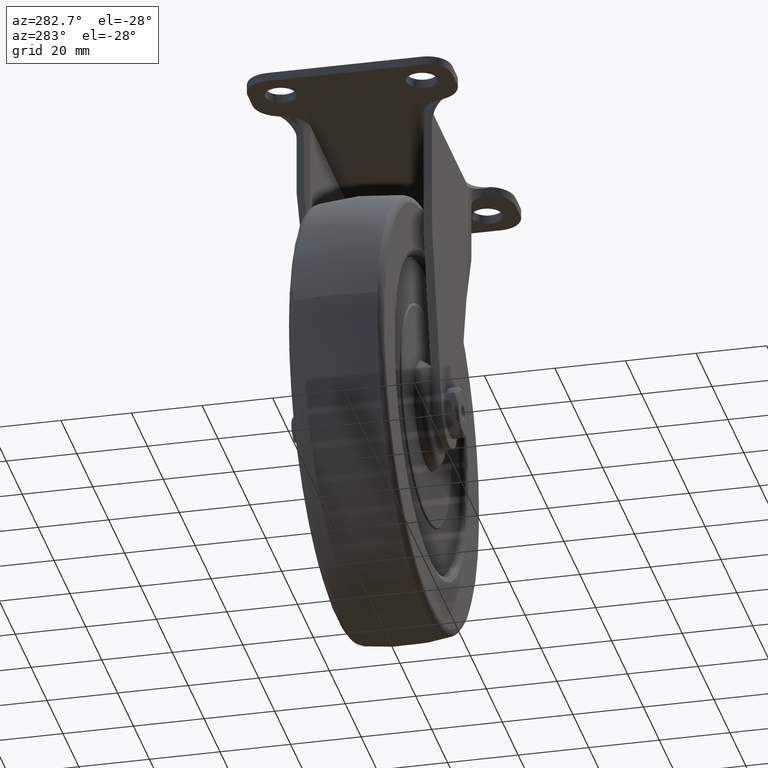
[diagram: clean part render]
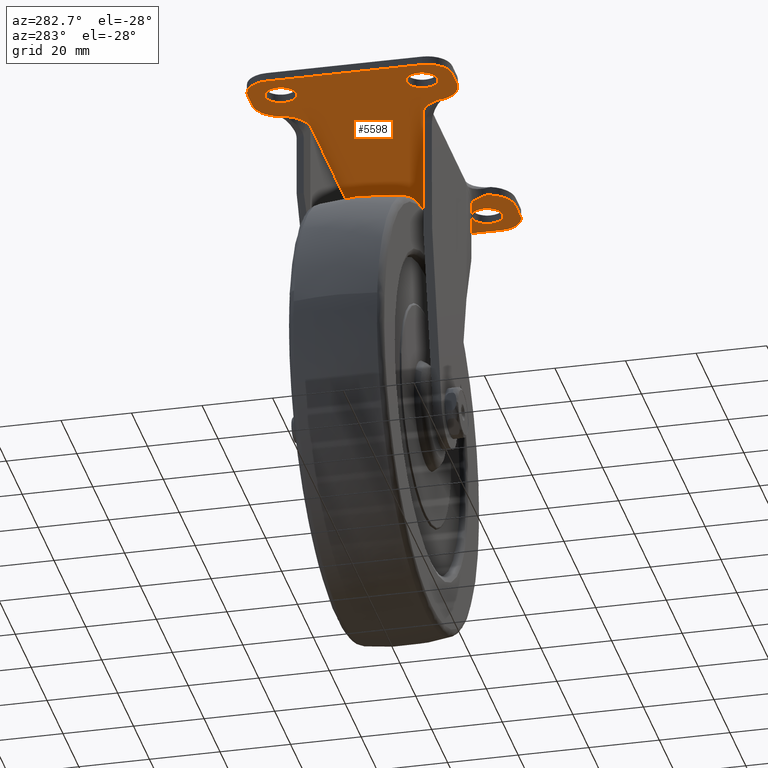
[diagram: same view with one face highlighted and labeled with its STEP entity id]
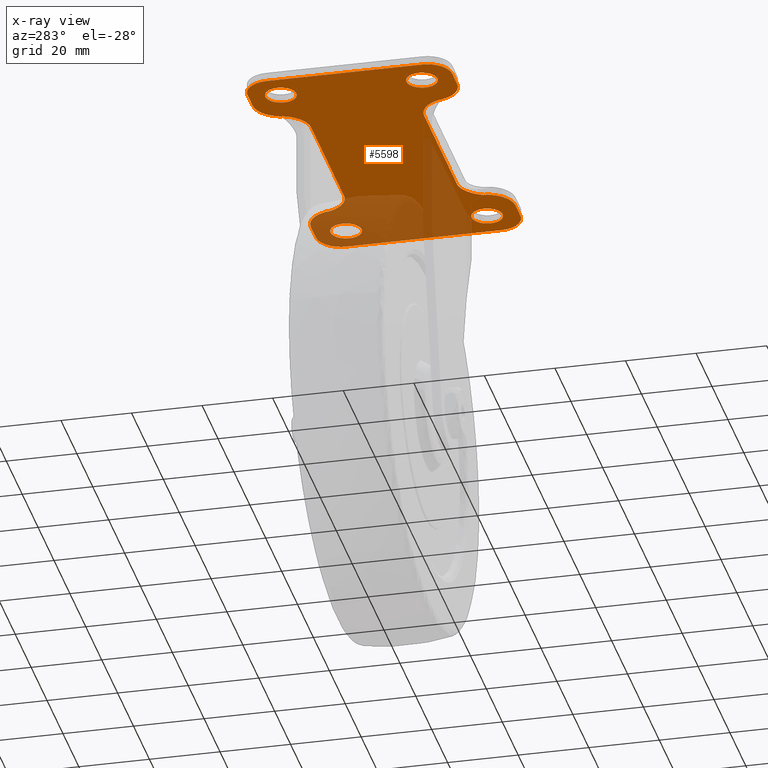
[diagram: x-ray of the same camera — body ghosted, the highlighted face saturated]
A machine part, auxiliary view. The second image highlights one B-rep face of the part: STEP entity #5598.
The next image is the same camera in x-ray: the body ghosted, the highlighted face saturated — about 29% of this face is hidden behind the body in this view.
In plain terms, the highlighted face is a freeform B-spline surface patch.
Its self-contained STEP definition (entity closure, byte-faithful):
#2997=CARTESIAN_POINT('',(45.400000100000007,-20.0,83.0));
#2998=VERTEX_POINT('',#2997);
#2999=CARTESIAN_POINT('',(41.345220029426791,-24.386436368087718,83.0));
#3000=VERTEX_POINT('',#2999);
#3001=CARTESIAN_POINT('',(45.400000100000007,-20.0,83.0));
#3002=CARTESIAN_POINT('',(45.400000100000007,-24.067318255031321,83.000000000000014));
#3003=CARTESIAN_POINT('',(41.345220029426784,-24.386436368087711,83.0));
#3011=(BOUNDED_CURVE()B_SPLINE_CURVE(2,(#3001,#3002,#3003),.UNSPECIFIED.,.F.,.U.)B_SPLINE_CURVE_WITH_KNOTS((3,3),(0.0,0.236331300603194),.UNSPECIFIED.)CURVE()GEOMETRIC_REPRESENTATION_ITEM()RATIONAL_B_SPLINE_CURVE((1.0,0.723120658639844,0.969723356110098))REPRESENTATION_ITEM(''));
#3012=EDGE_CURVE('',#2998,#3000,#3011,.T.);
#3053=CARTESIAN_POINT('',(40.654779970573209,-15.613563631912291,83.0));
#3054=VERTEX_POINT('',#3053);
#3060=CARTESIAN_POINT('',(40.654779970573202,-15.613563631912287,83.0));
#3061=CARTESIAN_POINT('',(40.827123524857122,-15.599999900000002,82.999999999999986));
#3062=CARTESIAN_POINT('',(41.0,-15.599999900000000,83.0));
#3063=CARTESIAN_POINT('',(45.400000100000014,-15.599999900000011,83.0));
#3064=CARTESIAN_POINT('',(45.400000100000007,-20.0,83.0));
#3072=(BOUNDED_CURVE()B_SPLINE_CURVE(2,(#3060,#3061,#3062,#3063,#3064),.UNSPECIFIED.,.F.,.U.)B_SPLINE_CURVE_WITH_KNOTS((3,2,3),(0.736331300603193,0.750000000000000,1.0),.UNSPECIFIED.)CURVE()GEOMETRIC_REPRESENTATION_ITEM()RATIONAL_B_SPLINE_CURVE((0.969723356110098,0.983986122546703,1.0,0.707106781186547,1.0))REPRESENTATION_ITEM(''));
#3073=EDGE_CURVE('',#3054,#2998,#3072,.T.);
#3096=CARTESIAN_POINT('',(36.599999900000000,-20.0,83.0));
#3097=VERTEX_POINT('',#3096);
#3098=CARTESIAN_POINT('',(41.345220029426791,-24.386436368087715,83.0));
#3099=CARTESIAN_POINT('',(41.172876475142871,-24.400000100000003,83.000000000000014));
#3100=CARTESIAN_POINT('',(41.0,-24.400000100000000,83.0));
#3101=CARTESIAN_POINT('',(36.599999900000000,-24.400000100000007,83.0));
#3102=CARTESIAN_POINT('',(36.599999900000000,-20.0,83.0));
#3110=(BOUNDED_CURVE()B_SPLINE_CURVE(2,(#3098,#3099,#3100,#3101,#3102),.UNSPECIFIED.,.F.,.U.)B_SPLINE_CURVE_WITH_KNOTS((3,2,3),(0.236331300603193,0.250000000000000,0.500000000000000),.UNSPECIFIED.)CURVE()GEOMETRIC_REPRESENTATION_ITEM()RATIONAL_B_SPLINE_CURVE((0.969723356110098,0.983986122546703,1.0,0.707106781186547,1.0))REPRESENTATION_ITEM(''));
#3111=EDGE_CURVE('',#3000,#3097,#3110,.T.);
#3113=CARTESIAN_POINT('',(36.599999900000000,-20.0,83.0));
#3114=CARTESIAN_POINT('',(36.599999900000000,-15.932681744968667,82.999999999999986));
#3115=CARTESIAN_POINT('',(40.654779970573209,-15.613563631912292,83.0));
#3123=(BOUNDED_CURVE()B_SPLINE_CURVE(2,(#3113,#3114,#3115),.UNSPECIFIED.,.F.,.U.)B_SPLINE_CURVE_WITH_KNOTS((3,3),(0.500000000000000,0.736331300603194),.UNSPECIFIED.)CURVE()GEOMETRIC_REPRESENTATION_ITEM()RATIONAL_B_SPLINE_CURVE((1.0,0.723120658639843,0.969723356110099))REPRESENTATION_ITEM(''));
#3124=EDGE_CURVE('',#3097,#3054,#3123,.T.);
#3179=CARTESIAN_POINT('',(-36.599999900000000,-20.0,83.0));
#3180=VERTEX_POINT('',#3179);
#3181=CARTESIAN_POINT('',(-40.654779970573202,-24.386436368087718,83.0));
#3182=VERTEX_POINT('',#3181);
#3183=CARTESIAN_POINT('',(-36.599999900000000,-20.0,83.0));
#3184=CARTESIAN_POINT('',(-36.599999900000007,-24.067318255031303,83.0));
#3185=CARTESIAN_POINT('',(-40.654779970573202,-24.386436368087711,83.0));
#3193=(BOUNDED_CURVE()B_SPLINE_CURVE(2,(#3183,#3184,#3185),.UNSPECIFIED.,.F.,.U.)B_SPLINE_CURVE_WITH_KNOTS((3,3),(0.0,0.236331300603193),.UNSPECIFIED.)CURVE()GEOMETRIC_REPRESENTATION_ITEM()RATIONAL_B_SPLINE_CURVE((1.0,0.723120658639845,0.969723356110097))REPRESENTATION_ITEM(''));
#3194=EDGE_CURVE('',#3180,#3182,#3193,.T.);
#3235=CARTESIAN_POINT('',(-41.345220029426798,-15.613563631912291,83.0));
#3236=VERTEX_POINT('',#3235);
#3242=CARTESIAN_POINT('',(-41.345220029426805,-15.613563631912282,83.000000000000014));
#3243=CARTESIAN_POINT('',(-41.172876475142878,-15.599999900000006,83.0));
#3244=CARTESIAN_POINT('',(-41.0,-15.599999900000000,83.0));
#3245=CARTESIAN_POINT('',(-36.599999900000000,-15.599999900000011,83.0));
#3246=CARTESIAN_POINT('',(-36.599999900000000,-20.0,83.0));
#3254=(BOUNDED_CURVE()B_SPLINE_CURVE(2,(#3242,#3243,#3244,#3245,#3246),.UNSPECIFIED.,.F.,.U.)B_SPLINE_CURVE_WITH_KNOTS((3,2,3),(0.736331300603193,0.750000000000000,1.0),.UNSPECIFIED.)CURVE()GEOMETRIC_REPRESENTATION_ITEM()RATIONAL_B_SPLINE_CURVE((0.969723356110097,0.983986122546703,1.0,0.707106781186547,1.0))REPRESENTATION_ITEM(''));
#3255=EDGE_CURVE('',#3236,#3180,#3254,.T.);
#3278=CARTESIAN_POINT('',(-45.400000100000007,-20.0,83.0));
#3279=VERTEX_POINT('',#3278);
#3280=CARTESIAN_POINT('',(-40.654779970573209,-24.386436368087722,83.000000000000014));
#3281=CARTESIAN_POINT('',(-40.827123524857122,-24.400000100000003,83.0));
#3282=CARTESIAN_POINT('',(-41.0,-24.400000100000000,83.0));
#3283=CARTESIAN_POINT('',(-45.400000100000014,-24.400000100000007,83.0));
#3284=CARTESIAN_POINT('',(-45.400000100000007,-20.0,83.0));
#3292=(BOUNDED_CURVE()B_SPLINE_CURVE(2,(#3280,#3281,#3282,#3283,#3284),.UNSPECIFIED.,.F.,.U.)B_SPLINE_CURVE_WITH_KNOTS((3,2,3),(0.236331300603193,0.250000000000000,0.500000000000000),.UNSPECIFIED.)CURVE()GEOMETRIC_REPRESENTATION_ITEM()RATIONAL_B_SPLINE_CURVE((0.969723356110097,0.983986122546703,1.0,0.707106781186547,1.0))REPRESENTATION_ITEM(''));
#3293=EDGE_CURVE('',#3182,#3279,#3292,.T.);
#3295=CARTESIAN_POINT('',(-45.400000100000007,-20.0,83.0));
#3296=CARTESIAN_POINT('',(-45.400000100000000,-15.932681744968667,82.999999999999986));
#3297=CARTESIAN_POINT('',(-41.345220029426798,-15.613563631912292,83.0));
#3305=(BOUNDED_CURVE()B_SPLINE_CURVE(2,(#3295,#3296,#3297),.UNSPECIFIED.,.F.,.U.)B_SPLINE_CURVE_WITH_KNOTS((3,3),(0.500000000000000,0.736331300603194),.UNSPECIFIED.)CURVE()GEOMETRIC_REPRESENTATION_ITEM()RATIONAL_B_SPLINE_CURVE((1.0,0.723120658639843,0.969723356110099))REPRESENTATION_ITEM(''));
#3306=EDGE_CURVE('',#3279,#3236,#3305,.T.);
#3361=CARTESIAN_POINT('',(-36.599999900000000,20.0,83.0));
#3362=VERTEX_POINT('',#3361);
#3363=CARTESIAN_POINT('',(-40.654779970573202,15.613563631912291,83.0));
#3364=VERTEX_POINT('',#3363);
#3365=CARTESIAN_POINT('',(-36.599999900000000,20.0,83.0));
#3366=CARTESIAN_POINT('',(-36.599999900000007,15.932681744968693,83.0));
#3367=CARTESIAN_POINT('',(-40.654779970573202,15.613563631912283,83.0));
#3375=(BOUNDED_CURVE()B_SPLINE_CURVE(2,(#3365,#3366,#3367),.UNSPECIFIED.,.F.,.U.)B_SPLINE_CURVE_WITH_KNOTS((3,3),(0.0,0.236331300603193),.UNSPECIFIED.)CURVE()GEOMETRIC_REPRESENTATION_ITEM()RATIONAL_B_SPLINE_CURVE((1.0,0.723120658639845,0.969723356110097))REPRESENTATION_ITEM(''));
#3376=EDGE_CURVE('',#3362,#3364,#3375,.T.);
#3417=CARTESIAN_POINT('',(-41.345220029426798,24.386436368087718,83.0));
#3418=VERTEX_POINT('',#3417);
#3424=CARTESIAN_POINT('',(-41.345220029426805,24.386436368087711,83.000000000000014));
#3425=CARTESIAN_POINT('',(-41.172876475142878,24.400000100000003,83.0));
#3426=CARTESIAN_POINT('',(-41.0,24.400000100000000,83.0));
#3427=CARTESIAN_POINT('',(-36.599999900000000,24.400000100000007,83.0));
#3428=CARTESIAN_POINT('',(-36.599999900000000,20.0,83.0));
#3436=(BOUNDED_CURVE()B_SPLINE_CURVE(2,(#3424,#3425,#3426,#3427,#3428),.UNSPECIFIED.,.F.,.U.)B_SPLINE_CURVE_WITH_KNOTS((3,2,3),(0.736331300603193,0.750000000000000,1.0),.UNSPECIFIED.)CURVE()GEOMETRIC_REPRESENTATION_ITEM()RATIONAL_B_SPLINE_CURVE((0.969723356110097,0.983986122546703,1.0,0.707106781186547,1.0))REPRESENTATION_ITEM(''));
#3437=EDGE_CURVE('',#3418,#3362,#3436,.T.);
#3460=CARTESIAN_POINT('',(-45.400000100000007,20.0,83.0));
#3461=VERTEX_POINT('',#3460);
#3462=CARTESIAN_POINT('',(-40.654779970573209,15.613563631912282,83.000000000000014));
#3463=CARTESIAN_POINT('',(-40.827123524857122,15.599999900000006,83.0));
#3464=CARTESIAN_POINT('',(-41.0,15.599999900000000,83.0));
#3465=CARTESIAN_POINT('',(-45.400000100000014,15.599999900000011,83.0));
#3466=CARTESIAN_POINT('',(-45.400000100000007,20.0,83.0));
#3474=(BOUNDED_CURVE()B_SPLINE_CURVE(2,(#3462,#3463,#3464,#3465,#3466),.UNSPECIFIED.,.F.,.U.)B_SPLINE_CURVE_WITH_KNOTS((3,2,3),(0.236331300603193,0.250000000000000,0.500000000000000),.UNSPECIFIED.)CURVE()GEOMETRIC_REPRESENTATION_ITEM()RATIONAL_B_SPLINE_CURVE((0.969723356110097,0.983986122546703,1.0,0.707106781186547,1.0))REPRESENTATION_ITEM(''));
#3475=EDGE_CURVE('',#3364,#3461,#3474,.T.);
#3477=CARTESIAN_POINT('',(-45.400000100000007,20.0,83.0));
#3478=CARTESIAN_POINT('',(-45.400000100000000,24.067318255031328,82.999999999999986));
#3479=CARTESIAN_POINT('',(-41.345220029426798,24.386436368087711,83.0));
#3487=(BOUNDED_CURVE()B_SPLINE_CURVE(2,(#3477,#3478,#3479),.UNSPECIFIED.,.F.,.U.)B_SPLINE_CURVE_WITH_KNOTS((3,3),(0.500000000000000,0.736331300603194),.UNSPECIFIED.)CURVE()GEOMETRIC_REPRESENTATION_ITEM()RATIONAL_B_SPLINE_CURVE((1.0,0.723120658639843,0.969723356110099))REPRESENTATION_ITEM(''));
#3488=EDGE_CURVE('',#3461,#3418,#3487,.T.);
#3543=CARTESIAN_POINT('',(45.400000100000007,20.0,83.0));
#3544=VERTEX_POINT('',#3543);
#3545=CARTESIAN_POINT('',(41.345220029426791,15.613563631912291,83.0));
#3546=VERTEX_POINT('',#3545);
#3547=CARTESIAN_POINT('',(45.400000100000007,20.0,83.0));
#3548=CARTESIAN_POINT('',(45.400000100000007,15.932681744968679,83.000000000000014));
#3549=CARTESIAN_POINT('',(41.345220029426784,15.613563631912291,83.0));
#3557=(BOUNDED_CURVE()B_SPLINE_CURVE(2,(#3547,#3548,#3549),.UNSPECIFIED.,.F.,.U.)B_SPLINE_CURVE_WITH_KNOTS((3,3),(0.0,0.236331300603194),.UNSPECIFIED.)CURVE()GEOMETRIC_REPRESENTATION_ITEM()RATIONAL_B_SPLINE_CURVE((1.0,0.723120658639844,0.969723356110098))REPRESENTATION_ITEM(''));
#3558=EDGE_CURVE('',#3544,#3546,#3557,.T.);
#3599=CARTESIAN_POINT('',(40.654779970573209,24.386436368087718,83.0));
#3600=VERTEX_POINT('',#3599);
#3606=CARTESIAN_POINT('',(40.654779970573202,24.386436368087711,83.0));
#3607=CARTESIAN_POINT('',(40.827123524857122,24.400000099999996,82.999999999999986));
#3608=CARTESIAN_POINT('',(41.0,24.400000100000000,83.0));
#3609=CARTESIAN_POINT('',(45.400000100000014,24.400000100000007,83.0));
#3610=CARTESIAN_POINT('',(45.400000100000007,20.0,83.0));
#3618=(BOUNDED_CURVE()B_SPLINE_CURVE(2,(#3606,#3607,#3608,#3609,#3610),.UNSPECIFIED.,.F.,.U.)B_SPLINE_CURVE_WITH_KNOTS((3,2,3),(0.736331300603193,0.750000000000000,1.0),.UNSPECIFIED.)CURVE()GEOMETRIC_REPRESENTATION_ITEM()RATIONAL_B_SPLINE_CURVE((0.969723356110098,0.983986122546703,1.0,0.707106781186547,1.0))REPRESENTATION_ITEM(''));
#3619=EDGE_CURVE('',#3600,#3544,#3618,.T.);
#3642=CARTESIAN_POINT('',(36.599999900000000,20.0,83.0));
#3643=VERTEX_POINT('',#3642);
#3644=CARTESIAN_POINT('',(41.345220029426791,15.613563631912282,83.0));
#3645=CARTESIAN_POINT('',(41.172876475142871,15.599999900000000,83.000000000000014));
#3646=CARTESIAN_POINT('',(41.0,15.599999900000000,83.0));
#3647=CARTESIAN_POINT('',(36.599999900000000,15.599999900000011,83.0));
#3648=CARTESIAN_POINT('',(36.599999900000000,20.0,83.0));
#3656=(BOUNDED_CURVE()B_SPLINE_CURVE(2,(#3644,#3645,#3646,#3647,#3648),.UNSPECIFIED.,.F.,.U.)B_SPLINE_CURVE_WITH_KNOTS((3,2,3),(0.236331300603193,0.250000000000000,0.500000000000000),.UNSPECIFIED.)CURVE()GEOMETRIC_REPRESENTATION_ITEM()RATIONAL_B_SPLINE_CURVE((0.969723356110098,0.983986122546703,1.0,0.707106781186547,1.0))REPRESENTATION_ITEM(''));
#3657=EDGE_CURVE('',#3546,#3643,#3656,.T.);
#3659=CARTESIAN_POINT('',(36.599999900000000,20.0,83.0));
#3660=CARTESIAN_POINT('',(36.599999900000000,24.067318255031328,82.999999999999986));
#3661=CARTESIAN_POINT('',(40.654779970573209,24.386436368087711,83.0));
#3669=(BOUNDED_CURVE()B_SPLINE_CURVE(2,(#3659,#3660,#3661),.UNSPECIFIED.,.F.,.U.)B_SPLINE_CURVE_WITH_KNOTS((3,3),(0.500000000000000,0.736331300603194),.UNSPECIFIED.)CURVE()GEOMETRIC_REPRESENTATION_ITEM()RATIONAL_B_SPLINE_CURVE((1.0,0.723120658639843,0.969723356110099))REPRESENTATION_ITEM(''));
#3670=EDGE_CURVE('',#3643,#3600,#3669,.T.);
#4452=CARTESIAN_POINT('',(28.745237669189049,-22.921851549150301,83.0));
#4453=VERTEX_POINT('',#4452);
#4468=CARTESIAN_POINT('',(28.745237669189049,-22.144441359476499,83.0));
#4469=VERTEX_POINT('',#4468);
#4483=CARTESIAN_POINT('',(28.745237669189049,-22.921851549150301,83.0));
#4484=CARTESIAN_POINT('',(28.745237669189049,-22.144441359476499,83.0));
#4485=QUASI_UNIFORM_CURVE('',1,(#4483,#4484),.UNSPECIFIED.,.F.,.U.);
#4486=EDGE_CURVE('',#4453,#4469,#4485,.T.);
#4655=CARTESIAN_POINT('',(-28.745237669189049,-22.144441359476499,83.0));
#4656=VERTEX_POINT('',#4655);
#4671=CARTESIAN_POINT('',(-28.745237669189049,-22.921851549150698,83.0));
#4672=VERTEX_POINT('',#4671);
#4686=CARTESIAN_POINT('',(-28.745237669189049,-22.921851549150698,83.0));
#4687=CARTESIAN_POINT('',(-28.745237669189049,-22.144441359476499,83.0));
#4688=QUASI_UNIFORM_CURVE('',1,(#4686,#4687),.UNSPECIFIED.,.F.,.U.);
#4689=EDGE_CURVE('',#4672,#4656,#4688,.T.);
#4982=CARTESIAN_POINT('',(-28.745237669189049,22.921851549150698,83.0));
#4983=VERTEX_POINT('',#4982);
#4998=CARTESIAN_POINT('',(-28.745237669189049,22.144441359476499,83.0));
#4999=VERTEX_POINT('',#4998);
#5013=CARTESIAN_POINT('',(-28.745237669189049,22.144441359476499,83.0));
#5014=CARTESIAN_POINT('',(-28.745237669189049,22.921851549150698,83.0));
#5015=QUASI_UNIFORM_CURVE('',1,(#5013,#5014),.UNSPECIFIED.,.F.,.U.);
#5016=EDGE_CURVE('',#4999,#4983,#5015,.T.);
#5124=CARTESIAN_POINT('',(28.745237669189049,22.144441359476499,83.0));
#5125=VERTEX_POINT('',#5124);
#5140=CARTESIAN_POINT('',(28.745237669189049,22.921851549150301,83.0));
#5141=VERTEX_POINT('',#5140);
#5155=CARTESIAN_POINT('',(28.745237669189049,22.144441359476499,83.0));
#5156=CARTESIAN_POINT('',(28.745237669189049,22.921851549150301,83.0));
#5157=QUASI_UNIFORM_CURVE('',1,(#5155,#5156),.UNSPECIFIED.,.F.,.U.);
#5158=EDGE_CURVE('',#5125,#5141,#5157,.T.);
#5181=CARTESIAN_POINT('',(-21.590155530322349,16.0,83.0));
#5182=VERTEX_POINT('',#5181);
#5188=CARTESIAN_POINT('',(-21.590155530322349,15.999999999999989,83.0));
#5189=CARTESIAN_POINT('',(-27.054956261418130,16.874543607641517,83.0));
#5190=CARTESIAN_POINT('',(-28.745237669189020,22.144441359476509,83.0));
#5198=(BOUNDED_CURVE()B_SPLINE_CURVE(2,(#5188,#5189,#5190),.UNSPECIFIED.,.F.,.U.)CURVE()GEOMETRIC_REPRESENTATION_ITEM()QUASI_UNIFORM_CURVE()RATIONAL_B_SPLINE_CURVE((1.0,0.852071238014258,1.0))REPRESENTATION_ITEM(''));
#5199=EDGE_CURVE('',#5182,#4999,#5198,.T.);
#5219=CARTESIAN_POINT('',(21.590155530322349,-16.0,83.0));
#5220=VERTEX_POINT('',#5219);
#5226=CARTESIAN_POINT('',(21.590155530322338,-15.999999999999989,83.0));
#5227=CARTESIAN_POINT('',(27.054956261418120,-16.874543607641510,83.0));
#5228=CARTESIAN_POINT('',(28.745237669189020,-22.144441359476509,83.0));
#5236=(BOUNDED_CURVE()B_SPLINE_CURVE(2,(#5226,#5227,#5228),.UNSPECIFIED.,.F.,.U.)CURVE()GEOMETRIC_REPRESENTATION_ITEM()QUASI_UNIFORM_CURVE()RATIONAL_B_SPLINE_CURVE((1.0,0.852071238014258,1.0))REPRESENTATION_ITEM(''));
#5237=EDGE_CURVE('',#5220,#4469,#5236,.T.);
#5261=CARTESIAN_POINT('',(-21.590155530322349,-16.0,83.0));
#5262=VERTEX_POINT('',#5261);
#5263=CARTESIAN_POINT('',(-28.745237669189020,-22.144441359476509,83.0));
#5264=CARTESIAN_POINT('',(-27.054956261418127,-16.874543607641513,83.0));
#5265=CARTESIAN_POINT('',(-21.590155530322360,-15.999999999999989,83.0));
#5273=(BOUNDED_CURVE()B_SPLINE_CURVE(2,(#5263,#5264,#5265),.UNSPECIFIED.,.F.,.U.)CURVE()GEOMETRIC_REPRESENTATION_ITEM()QUASI_UNIFORM_CURVE()RATIONAL_B_SPLINE_CURVE((1.0,0.852071238014258,1.0))REPRESENTATION_ITEM(''));
#5274=EDGE_CURVE('',#4656,#5262,#5273,.T.);
#5306=CARTESIAN_POINT('',(21.590155530322349,16.0,83.0));
#5307=VERTEX_POINT('',#5306);
#5308=CARTESIAN_POINT('',(28.745237669189020,22.144441359476509,83.0));
#5309=CARTESIAN_POINT('',(27.054956261418127,16.874543607641506,83.000000000000014));
#5310=CARTESIAN_POINT('',(21.590155530322349,15.999999999999989,83.0));
#5318=(BOUNDED_CURVE()B_SPLINE_CURVE(2,(#5308,#5309,#5310),.UNSPECIFIED.,.F.,.U.)CURVE()GEOMETRIC_REPRESENTATION_ITEM()QUASI_UNIFORM_CURVE()RATIONAL_B_SPLINE_CURVE((1.0,0.852071238014258,1.0))REPRESENTATION_ITEM(''));
#5319=EDGE_CURVE('',#5125,#5307,#5318,.T.);
#5329=CARTESIAN_POINT('',(-54.994999806180601,-31.897099887584751,83.0));
#5330=CARTESIAN_POINT('',(54.995002488389623,-31.897099887584751,83.0));
#5331=CARTESIAN_POINT('',(-54.994999806180601,31.897101443265981,83.0));
#5332=CARTESIAN_POINT('',(54.995002488389623,31.897101443265981,83.0));
#5333=B_SPLINE_SURFACE_WITH_KNOTS('',1,1,((#5329,#5331),(#5330,#5332)),.UNSPECIFIED.,.F.,.F.,.U.,(2,2),(2,2),(0.0,109.990002294570200),(0.0,63.794201330850733),.UNSPECIFIED.);
#5334=ORIENTED_EDGE('',*,*,#5274,.F.);
#5335=ORIENTED_EDGE('',*,*,#4689,.F.);
#5336=CARTESIAN_POINT('',(-29.102524228969649,-23.750001552712749,83.0));
#5337=VERTEX_POINT('',#5336);
#5338=CARTESIAN_POINT('',(-28.745237669189049,-22.921851549150698,83.0));
#5339=CARTESIAN_POINT('',(-28.947259885844428,-23.325840144237215,83.0));
#5340=CARTESIAN_POINT('',(-29.102524228969649,-23.750001552712749,83.0));
#5348=(BOUNDED_CURVE()B_SPLINE_CURVE(2,(#5338,#5339,#5340),.UNSPECIFIED.,.F.,.U.)CURVE()GEOMETRIC_REPRESENTATION_ITEM()QUASI_UNIFORM_CURVE()RATIONAL_B_SPLINE_CURVE((1.0,0.998409895108221,1.0))REPRESENTATION_ITEM(''));
#5349=EDGE_CURVE('',#4672,#5337,#5348,.T.);
#5350=ORIENTED_EDGE('',*,*,#5349,.T.);
#5351=CARTESIAN_POINT('',(-36.615010000000012,-29.0,83.0));
#5352=VERTEX_POINT('',#5351);
#5353=CARTESIAN_POINT('',(-29.102524228969649,-23.750001552712749,83.0));
#5354=CARTESIAN_POINT('',(-31.024323567332885,-28.999999473630670,82.999999999999986));
#5355=CARTESIAN_POINT('',(-36.615010000000012,-29.0,83.0));
#5363=(BOUNDED_CURVE()B_SPLINE_CURVE(2,(#5353,#5354,#5355),.UNSPECIFIED.,.F.,.U.)CURVE()GEOMETRIC_REPRESENTATION_ITEM()QUASI_UNIFORM_CURVE()RATIONAL_B_SPLINE_CURVE((1.0,0.819679914869648,1.0))REPRESENTATION_ITEM(''));
#5364=EDGE_CURVE('',#5337,#5352,#5363,.T.);
#5365=ORIENTED_EDGE('',*,*,#5364,.T.);
#5366=CARTESIAN_POINT('',(-43.0,-29.0,83.0));
#5367=VERTEX_POINT('',#5366);
#5368=CARTESIAN_POINT('',(-36.615010000000012,-29.0,83.0));
#5369=CARTESIAN_POINT('',(-43.0,-29.0,83.0));
#5370=QUASI_UNIFORM_CURVE('',1,(#5368,#5369),.UNSPECIFIED.,.F.,.U.);
#5371=EDGE_CURVE('',#5352,#5367,#5370,.T.);
#5372=ORIENTED_EDGE('',*,*,#5371,.T.);
#5373=CARTESIAN_POINT('',(-50.0,-21.999997556539199,83.0));
#5374=VERTEX_POINT('',#5373);
#5375=CARTESIAN_POINT('',(-43.0,-29.0,83.0));
#5376=CARTESIAN_POINT('',(-45.899495652284777,-28.999999999999993,83.0));
#5377=CARTESIAN_POINT('',(-47.949748332199597,-26.949746604411910,83.0));
#5378=CARTESIAN_POINT('',(-50.000001012114424,-24.899493208823817,83.0));
#5379=CARTESIAN_POINT('',(-50.0,-21.999997556539199,83.0));
#5387=(BOUNDED_CURVE()B_SPLINE_CURVE(2,(#5375,#5376,#5377,#5378,#5379),.UNSPECIFIED.,.F.,.U.)B_SPLINE_CURVE_WITH_KNOTS((3,2,3),(0.0,0.500000000000000,1.0),.UNSPECIFIED.)CURVE()GEOMETRIC_REPRESENTATION_ITEM()RATIONAL_B_SPLINE_CURVE((1.0,0.923879499115856,1.0,0.923879499115856,1.0))REPRESENTATION_ITEM(''));
#5388=EDGE_CURVE('',#5367,#5374,#5387,.T.);
#5389=ORIENTED_EDGE('',*,*,#5388,.T.);
#5390=CARTESIAN_POINT('',(-50.0,22.0,83.0));
#5391=VERTEX_POINT('',#5390);
#5392=CARTESIAN_POINT('',(-50.0,-21.999997556539199,83.0));
#5393=CARTESIAN_POINT('',(-50.0,22.0,83.0));
#5394=QUASI_UNIFORM_CURVE('',1,(#5392,#5393),.UNSPECIFIED.,.F.,.U.);
#5395=EDGE_CURVE('',#5374,#5391,#5394,.T.);
#5396=ORIENTED_EDGE('',*,*,#5395,.T.);
#5397=CARTESIAN_POINT('',(-43.000003665191407,29.0,83.0));
#5398=VERTEX_POINT('',#5397);
#5399=CARTESIAN_POINT('',(-49.999999999999993,22.0,83.0));
#5400=CARTESIAN_POINT('',(-49.999999999999986,28.999996334809556,83.0));
#5401=CARTESIAN_POINT('',(-43.000003665191407,29.0,83.0));
#5409=(BOUNDED_CURVE()B_SPLINE_CURVE(2,(#5399,#5400,#5401),.UNSPECIFIED.,.F.,.U.)CURVE()GEOMETRIC_REPRESENTATION_ITEM()QUASI_UNIFORM_CURVE()RATIONAL_B_SPLINE_CURVE((1.0,0.707106966306645,1.0))REPRESENTATION_ITEM(''));
#5410=EDGE_CURVE('',#5391,#5398,#5409,.T.);
#5411=ORIENTED_EDGE('',*,*,#5410,.T.);
#5412=CARTESIAN_POINT('',(-36.615010000000012,29.0,83.0));
#5413=VERTEX_POINT('',#5412);
#5414=CARTESIAN_POINT('',(-43.000003665191407,29.0,83.0));
#5415=CARTESIAN_POINT('',(-36.615010000000012,29.0,83.0));
#5416=QUASI_UNIFORM_CURVE('',1,(#5414,#5415),.UNSPECIFIED.,.F.,.U.);
#5417=EDGE_CURVE('',#5398,#5413,#5416,.T.);
#5418=ORIENTED_EDGE('',*,*,#5417,.T.);
#5419=CARTESIAN_POINT('',(-29.102524228969649,23.750001552712749,83.0));
#5420=VERTEX_POINT('',#5419);
#5421=CARTESIAN_POINT('',(-36.615010000000012,29.0,83.0));
#5422=CARTESIAN_POINT('',(-31.024323567332878,28.999999473630663,83.0));
#5423=CARTESIAN_POINT('',(-29.102524228969649,23.750001552712749,83.0));
#5431=(BOUNDED_CURVE()B_SPLINE_CURVE(2,(#5421,#5422,#5423),.UNSPECIFIED.,.F.,.U.)CURVE()GEOMETRIC_REPRESENTATION_ITEM()QUASI_UNIFORM_CURVE()RATIONAL_B_SPLINE_CURVE((1.0,0.819679914869648,1.0))REPRESENTATION_ITEM(''));
#5432=EDGE_CURVE('',#5413,#5420,#5431,.T.);
#5433=ORIENTED_EDGE('',*,*,#5432,.T.);
#5434=CARTESIAN_POINT('',(-29.102524228969649,23.750001552712749,83.0));
#5435=CARTESIAN_POINT('',(-28.947259885844428,23.325840144237215,83.0));
#5436=CARTESIAN_POINT('',(-28.745237669189049,22.921851549150698,83.0));
#5444=(BOUNDED_CURVE()B_SPLINE_CURVE(2,(#5434,#5435,#5436),.UNSPECIFIED.,.F.,.U.)CURVE()GEOMETRIC_REPRESENTATION_ITEM()QUASI_UNIFORM_CURVE()RATIONAL_B_SPLINE_CURVE((1.0,0.998409895108221,1.0))REPRESENTATION_ITEM(''));
#5445=EDGE_CURVE('',#5420,#4983,#5444,.T.);
#5446=ORIENTED_EDGE('',*,*,#5445,.T.);
#5447=ORIENTED_EDGE('',*,*,#5016,.F.);
#5448=ORIENTED_EDGE('',*,*,#5199,.F.);
#5449=CARTESIAN_POINT('',(21.590155530322349,16.0,83.0));
#5450=CARTESIAN_POINT('',(-21.590155530322349,16.0,83.0));
#5451=QUASI_UNIFORM_CURVE('',1,(#5449,#5450),.UNSPECIFIED.,.F.,.U.);
#5452=EDGE_CURVE('',#5307,#5182,#5451,.T.);
#5453=ORIENTED_EDGE('',*,*,#5452,.F.);
#5454=ORIENTED_EDGE('',*,*,#5319,.F.);
#5455=ORIENTED_EDGE('',*,*,#5158,.T.);
#5456=CARTESIAN_POINT('',(29.102524228969550,23.750001552711950,83.0));
#5457=VERTEX_POINT('',#5456);
#5458=CARTESIAN_POINT('',(28.745237669189049,22.921851549150301,83.0));
#5459=CARTESIAN_POINT('',(28.947259885844360,23.325840144236626,83.0));
#5460=CARTESIAN_POINT('',(29.102524228969550,23.750001552711950,83.0));
#5468=(BOUNDED_CURVE()B_SPLINE_CURVE(2,(#5458,#5459,#5460),.UNSPECIFIED.,.F.,.U.)CURVE()GEOMETRIC_REPRESENTATION_ITEM()QUASI_UNIFORM_CURVE()RATIONAL_B_SPLINE_CURVE((1.0,0.998409895108222,1.0))REPRESENTATION_ITEM(''));
#5469=EDGE_CURVE('',#5141,#5457,#5468,.T.);
#5470=ORIENTED_EDGE('',*,*,#5469,.T.);
#5471=CARTESIAN_POINT('',(36.615012792526947,29.0,83.0));
#5472=VERTEX_POINT('',#5471);
#5473=CARTESIAN_POINT('',(29.102524228969550,23.750001552711950,83.0));
#5474=CARTESIAN_POINT('',(31.024324281700338,29.000001425149424,83.0));
#5475=CARTESIAN_POINT('',(36.615012792526947,29.0,83.0));
#5483=(BOUNDED_CURVE()B_SPLINE_CURVE(2,(#5473,#5474,#5475),.UNSPECIFIED.,.F.,.U.)CURVE()GEOMETRIC_REPRESENTATION_ITEM()QUASI_UNIFORM_CURVE()RATIONAL_B_SPLINE_CURVE((1.0,0.819679814893335,1.0))REPRESENTATION_ITEM(''));
#5484=EDGE_CURVE('',#5457,#5472,#5483,.T.);
#5485=ORIENTED_EDGE('',*,*,#5484,.T.);
#5486=CARTESIAN_POINT('',(43.0,29.0,83.0));
#5487=VERTEX_POINT('',#5486);
#5488=CARTESIAN_POINT('',(36.615012792526947,29.0,83.0));
#5489=CARTESIAN_POINT('',(43.0,29.0,83.0));
#5490=QUASI_UNIFORM_CURVE('',1,(#5488,#5489),.UNSPECIFIED.,.F.,.U.);
#5491=EDGE_CURVE('',#5472,#5487,#5490,.T.);
#5492=ORIENTED_EDGE('',*,*,#5491,.T.);
#5493=CARTESIAN_POINT('',(50.0,22.0,83.0));
#5494=VERTEX_POINT('',#5493);
#5495=CARTESIAN_POINT('',(43.0,29.0,83.0));
#5496=CARTESIAN_POINT('',(49.999999999999993,28.999999999999989,83.0));
#5497=CARTESIAN_POINT('',(49.999999999999993,22.0,83.0));
#5505=(BOUNDED_CURVE()B_SPLINE_CURVE(2,(#5495,#5496,#5497),.UNSPECIFIED.,.F.,.U.)CURVE()GEOMETRIC_REPRESENTATION_ITEM()QUASI_UNIFORM_CURVE()RATIONAL_B_SPLINE_CURVE((1.0,0.707106781186547,1.0))REPRESENTATION_ITEM(''));
#5506=EDGE_CURVE('',#5487,#5494,#5505,.T.);
#5507=ORIENTED_EDGE('',*,*,#5506,.T.);
#5508=CARTESIAN_POINT('',(50.0,-22.0,83.0));
#5509=VERTEX_POINT('',#5508);
#5510=CARTESIAN_POINT('',(50.0,22.0,83.0));
#5511=CARTESIAN_POINT('',(50.0,-22.0,83.0));
#5512=QUASI_UNIFORM_CURVE('',1,(#5510,#5511),.UNSPECIFIED.,.F.,.U.);
#5513=EDGE_CURVE('',#5494,#5509,#5512,.T.);
#5514=ORIENTED_EDGE('',*,*,#5513,.T.);
#5515=CARTESIAN_POINT('',(43.000002443461199,-29.0,83.0));
#5516=VERTEX_POINT('',#5515);
#5517=CARTESIAN_POINT('',(49.999999999999993,-22.0,83.0));
#5518=CARTESIAN_POINT('',(49.999999999999979,-28.999997556539221,83.000000000000014));
#5519=CARTESIAN_POINT('',(43.000002443461199,-29.0,83.0));
#5527=(BOUNDED_CURVE()B_SPLINE_CURVE(2,(#5517,#5518,#5519),.UNSPECIFIED.,.F.,.U.)CURVE()GEOMETRIC_REPRESENTATION_ITEM()QUASI_UNIFORM_CURVE()RATIONAL_B_SPLINE_CURVE((1.0,0.707106904599964,1.0))REPRESENTATION_ITEM(''));
#5528=EDGE_CURVE('',#5509,#5516,#5527,.T.);
#5529=ORIENTED_EDGE('',*,*,#5528,.T.);
#5530=CARTESIAN_POINT('',(36.615010000000012,-29.0,83.0));
#5531=VERTEX_POINT('',#5530);
#5532=CARTESIAN_POINT('',(43.000002443461199,-29.0,83.0));
#5533=CARTESIAN_POINT('',(36.615010000000012,-29.0,83.0));
#5534=QUASI_UNIFORM_CURVE('',1,(#5532,#5533),.UNSPECIFIED.,.F.,.U.);
#5535=EDGE_CURVE('',#5516,#5531,#5534,.T.);
#5536=ORIENTED_EDGE('',*,*,#5535,.T.);
#5537=CARTESIAN_POINT('',(29.102524228969550,-23.750001552711950,83.0));
#5538=VERTEX_POINT('',#5537);
#5539=CARTESIAN_POINT('',(36.615010000000012,-29.0,83.0));
#5540=CARTESIAN_POINT('',(31.024323567332388,-28.999999473630638,82.999999999999986));
#5541=CARTESIAN_POINT('',(29.102524228969550,-23.750001552711950,83.0));
#5549=(BOUNDED_CURVE()B_SPLINE_CURVE(2,(#5539,#5540,#5541),.UNSPECIFIED.,.F.,.U.)CURVE()GEOMETRIC_REPRESENTATION_ITEM()QUASI_UNIFORM_CURVE()RATIONAL_B_SPLINE_CURVE((1.0,0.819679914869620,1.0))REPRESENTATION_ITEM(''));
#5550=EDGE_CURVE('',#5531,#5538,#5549,.T.);
#5551=ORIENTED_EDGE('',*,*,#5550,.T.);
#5552=CARTESIAN_POINT('',(29.102524228969550,-23.750001552711950,83.0));
#5553=CARTESIAN_POINT('',(28.947259885844367,-23.325840144236629,83.0));
#5554=CARTESIAN_POINT('',(28.745237669189049,-22.921851549150301,83.0));
#5562=(BOUNDED_CURVE()B_SPLINE_CURVE(2,(#5552,#5553,#5554),.UNSPECIFIED.,.F.,.U.)CURVE()GEOMETRIC_REPRESENTATION_ITEM()QUASI_UNIFORM_CURVE()RATIONAL_B_SPLINE_CURVE((1.0,0.998409895108223,1.0))REPRESENTATION_ITEM(''));
#5563=EDGE_CURVE('',#5538,#4453,#5562,.T.);
#5564=ORIENTED_EDGE('',*,*,#5563,.T.);
#5565=ORIENTED_EDGE('',*,*,#4486,.T.);
#5566=ORIENTED_EDGE('',*,*,#5237,.F.);
#5567=CARTESIAN_POINT('',(-21.590155530322349,-16.0,83.0));
#5568=CARTESIAN_POINT('',(21.590155530322349,-16.0,83.0));
#5569=QUASI_UNIFORM_CURVE('',1,(#5567,#5568),.UNSPECIFIED.,.F.,.U.);
#5570=EDGE_CURVE('',#5262,#5220,#5569,.T.);
#5571=ORIENTED_EDGE('',*,*,#5570,.F.);
#5572=EDGE_LOOP('',(#5334,#5335,#5350,#5365,#5372,#5389,#5396,#5411,#5418,#5433,#5446,#5447,#5448,#5453,#5454,#5455,#5470,#5485,#5492,#5507,#5514,#5529,#5536,#5551,#5564,#5565,#5566,#5571));
#5573=FACE_OUTER_BOUND('',#5572,.T.);
#5574=ORIENTED_EDGE('',*,*,#3670,.F.);
#5575=ORIENTED_EDGE('',*,*,#3657,.F.);
#5576=ORIENTED_EDGE('',*,*,#3558,.F.);
#5577=ORIENTED_EDGE('',*,*,#3619,.F.);
#5578=EDGE_LOOP('',(#5574,#5575,#5576,#5577));
#5579=FACE_BOUND('',#5578,.T.);
#5580=ORIENTED_EDGE('',*,*,#3488,.F.);
#5581=ORIENTED_EDGE('',*,*,#3475,.F.);
#5582=ORIENTED_EDGE('',*,*,#3376,.F.);
#5583=ORIENTED_EDGE('',*,*,#3437,.F.);
#5584=EDGE_LOOP('',(#5580,#5581,#5582,#5583));
#5585=FACE_BOUND('',#5584,.T.);
#5586=ORIENTED_EDGE('',*,*,#3306,.F.);
#5587=ORIENTED_EDGE('',*,*,#3293,.F.);
#5588=ORIENTED_EDGE('',*,*,#3194,.F.);
#5589=ORIENTED_EDGE('',*,*,#3255,.F.);
#5590=EDGE_LOOP('',(#5586,#5587,#5588,#5589));
#5591=FACE_BOUND('',#5590,.T.);
#5592=ORIENTED_EDGE('',*,*,#3124,.F.);
#5593=ORIENTED_EDGE('',*,*,#3111,.F.);
#5594=ORIENTED_EDGE('',*,*,#3012,.F.);
#5595=ORIENTED_EDGE('',*,*,#3073,.F.);
#5596=EDGE_LOOP('',(#5592,#5593,#5594,#5595));
#5597=FACE_BOUND('',#5596,.T.);
#5598=ADVANCED_FACE('',(#5573,#5579,#5585,#5591,#5597),#5333,.F.);